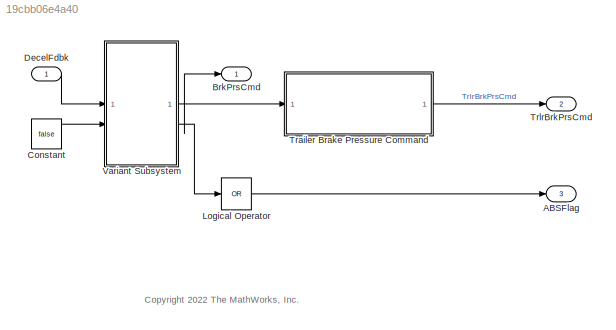
MODEL slx_19cbb06e4a40
KIND model
BLOCK [Outport] ABSFlag
  Port = 3
BLOCK [Outport] BrkPrsCmd
  OutDataTypeStr = double
  VectorParamsAs1DForOutWhenUnconnected = off
BLOCK [Constant] Constant
  Value = false
BLOCK [Inport] DecelFdbk
  OutDataTypeStr = double
  PortDimensions = 1
BLOCK [Logic] Logical Operator
  AllPortsSameDT = off
  Inputs = 1
  Operator = OR
  OutDataTypeStr = boolean
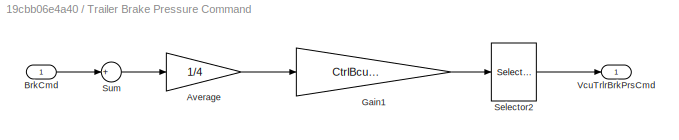
BLOCK [SubSystem] Trailer Brake Pressure Command
BLOCK [Gain] Trailer Brake Pressure Command/Average
  Gain = 1/4
BLOCK [Inport] Trailer Brake Pressure Command/BrkCmd
BLOCK [Gain] Trailer Brake Pressure Command/Gain1
  Gain = CtrlBcuTrlrBrkGain
BLOCK [Selector] Trailer Brake Pressure Command/Selector2
  IndexOptions = Index vector (dialog)
  Indices = [1 1 1 1 1 1]
  InputPortWidth = 1
  OutputSizes = 1
BLOCK [Sum] Trailer Brake Pressure Command/Sum
  Inputs = +
BLOCK [Outport] Trailer Brake Pressure Command/VcuTrlrBrkPrsCmd
BLOCK [Outport] TrlrBrkPrsCmd
  Port = 2
  PortDimensions = 6
  VectorParamsAs1DForOutWhenUnconnected = off
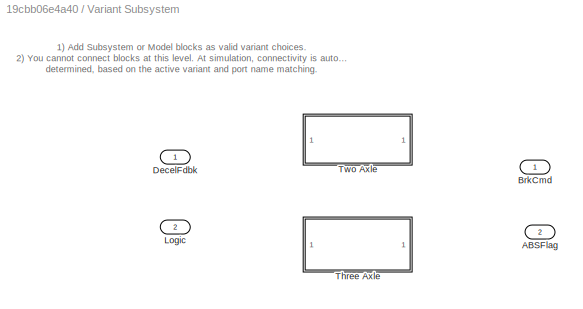
BLOCK [SubSystem] Variant Subsystem
  LabelModeActiveChoice = TwoAxle
  Variant = on
  VariantControlMode = label
BLOCK [Outport] Variant Subsystem/ABSFlag
  Port = 2
BLOCK [Outport] Variant Subsystem/BrkCmd
BLOCK [Inport] Variant Subsystem/DecelFdbk
BLOCK [Inport] Variant Subsystem/Logic
  Port = 2
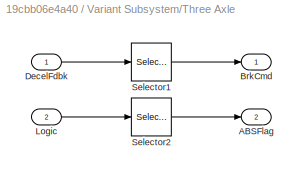
BLOCK [SubSystem] Variant Subsystem/Three Axle
  VariantControl = ThreeAxle
BLOCK [Outport] Variant Subsystem/Three Axle/ABSFlag
  Port = 2
BLOCK [Outport] Variant Subsystem/Three Axle/BrkCmd
BLOCK [Inport] Variant Subsystem/Three Axle/DecelFdbk
BLOCK [Inport] Variant Subsystem/Three Axle/Logic
  Port = 2
BLOCK [Selector] Variant Subsystem/Three Axle/Selector1
  IndexOptions = Index vector (dialog)
  Indices = [1 1 1 1 1 1]
  InputPortWidth = 1
  OutputSizes = 1
BLOCK [Selector] Variant Subsystem/Three Axle/Selector2
  IndexOptions = Index vector (dialog)
  Indices = [1 1 1 1 1 1]
  InputPortWidth = 1
  OutputSizes = 1
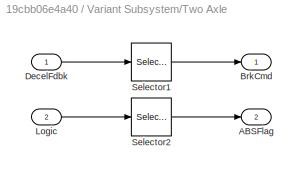
BLOCK [SubSystem] Variant Subsystem/Two Axle
  VariantControl = TwoAxle
BLOCK [Outport] Variant Subsystem/Two Axle/ABSFlag
  Port = 2
BLOCK [Outport] Variant Subsystem/Two Axle/BrkCmd
BLOCK [Inport] Variant Subsystem/Two Axle/DecelFdbk
BLOCK [Inport] Variant Subsystem/Two Axle/Logic
  Port = 2
BLOCK [Selector] Variant Subsystem/Two Axle/Selector1
  IndexOptions = Index vector (dialog)
  Indices = [1 1 1 1]
  InputPortWidth = 1
  OutputSizes = 1
BLOCK [Selector] Variant Subsystem/Two Axle/Selector2
  IndexOptions = Index vector (dialog)
  Indices = [1 1 1 1]
  InputPortWidth = 1
  OutputSizes = 1
ANNOTATION (root): <copyright redacted>
ANNOTATION Variant Subsystem: 1) Add Subsystem or Model blocks as valid variant choices. 2) You cannot connect blocks at this level. At simulation, connectivity is automatically determined, based on the active variant and port name matching.
LINE Constant:1 -> Variant Subsystem:2
LINE DecelFdbk:1 -> Variant Subsystem:1
LINE Logical Operator:1 -> ABSFlag:1
LINE Trailer Brake Pressure Command/Average:1 -> Trailer Brake Pressure Command/Gain1:1
LINE Trailer Brake Pressure Command/BrkCmd:1 -> Trailer Brake Pressure Command/Sum:1
LINE Trailer Brake Pressure Command/Gain1:1 -> Trailer Brake Pressure Command/Selector2:1
LINE Trailer Brake Pressure Command/Selector2:1 -> Trailer Brake Pressure Command/VcuTrlrBrkPrsCmd:1
LINE Trailer Brake Pressure Command/Sum:1 -> Trailer Brake Pressure Command/Average:1
LINE Trailer Brake Pressure Command:1 -> TrlrBrkPrsCmd:1
LINE Variant Subsystem/Three Axle/DecelFdbk:1 -> Variant Subsystem/Three Axle/Selector1:1
LINE Variant Subsystem/Three Axle/Logic:1 -> Variant Subsystem/Three Axle/Selector2:1
LINE Variant Subsystem/Three Axle/Selector1:1 -> Variant Subsystem/Three Axle/BrkCmd:1
LINE Variant Subsystem/Three Axle/Selector2:1 -> Variant Subsystem/Three Axle/ABSFlag:1
LINE Variant Subsystem/Two Axle/DecelFdbk:1 -> Variant Subsystem/Two Axle/Selector1:1
LINE Variant Subsystem/Two Axle/Logic:1 -> Variant Subsystem/Two Axle/Selector2:1
LINE Variant Subsystem/Two Axle/Selector1:1 -> Variant Subsystem/Two Axle/BrkCmd:1
LINE Variant Subsystem/Two Axle/Selector2:1 -> Variant Subsystem/Two Axle/ABSFlag:1
NET Variant Subsystem:1 -> BrkPrsCmd:1, Trailer Brake Pressure Command:1
LINE Variant Subsystem:2 -> Logical Operator:1
note: NET lines group one-source signal fan-out (src -> all destinations, sorted); 1:1 wires keep LINE
